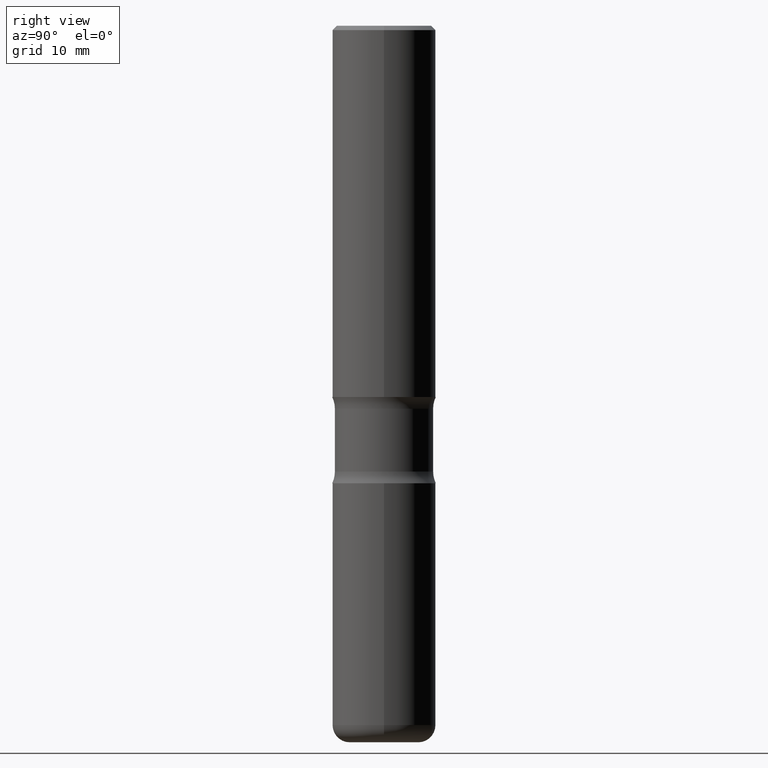
[diagram: clean part render]
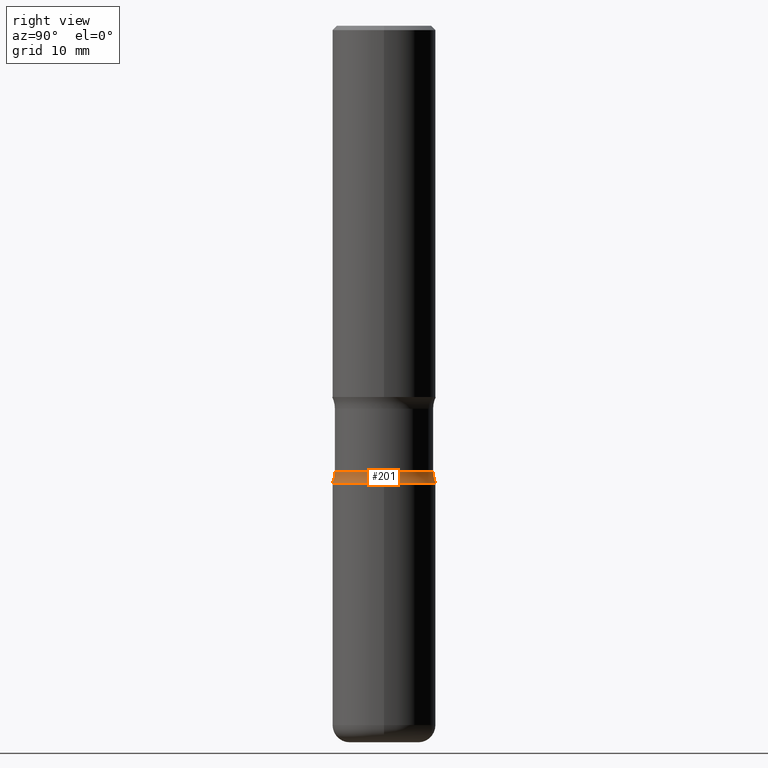
[diagram: same view with one face highlighted and labeled with its STEP entity id]
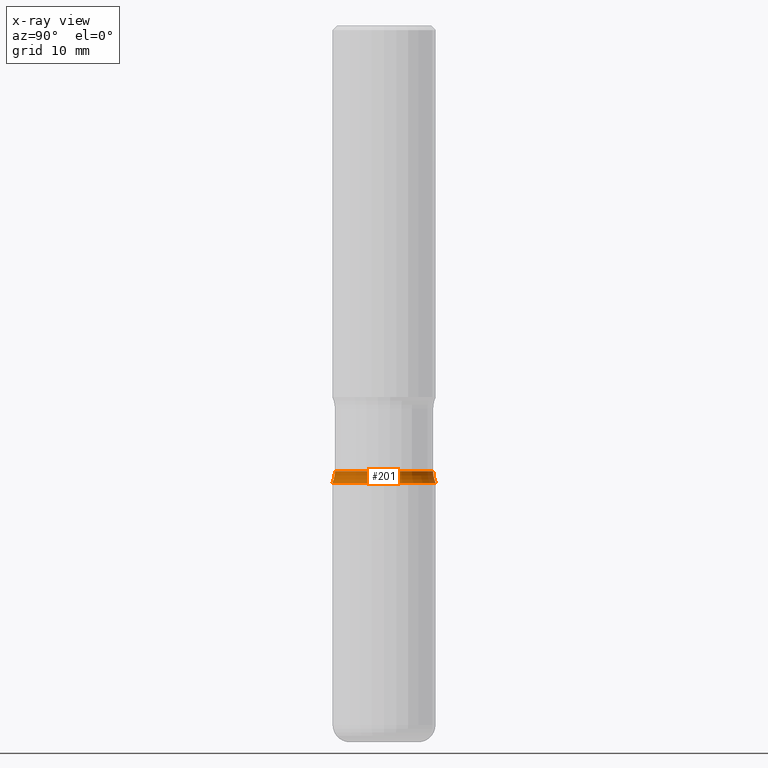
[diagram: x-ray of the same camera — body ghosted, the highlighted face saturated]
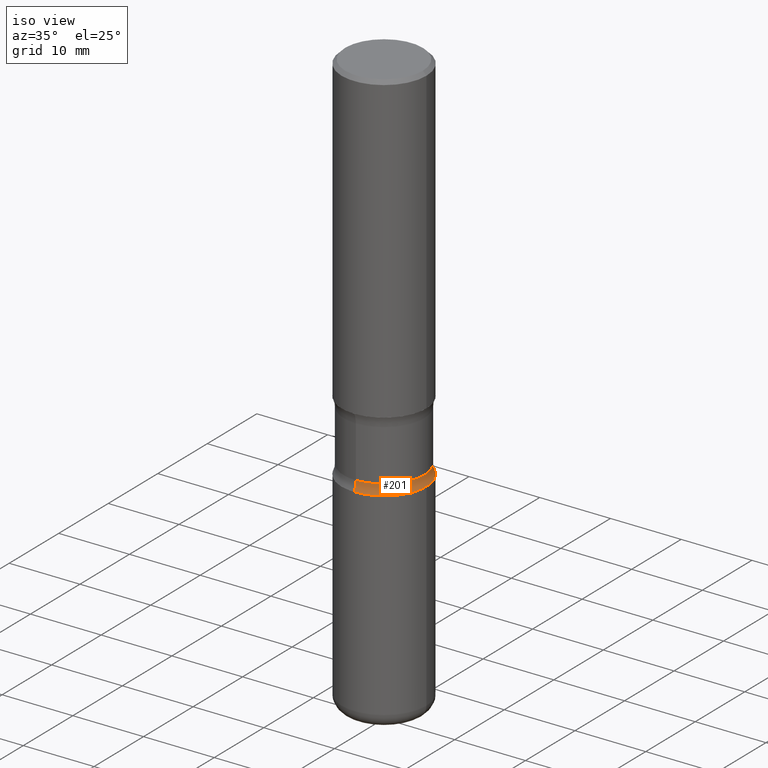
[diagram: same view with one face highlighted and labeled with its STEP entity id]
A machine part, right view. The second image highlights one B-rep face of the part: STEP entity #201.
The next image is the same camera in x-ray: the body ghosted, the highlighted face saturated — about 0% of this face is hidden behind the body in this view.
A second angle (iso view) of the same face is appended — the face is thin or edge-on in the first view.
In plain terms, the highlighted toroidal blend (fillet) surface has major radius 8.8646 mm and minor (blend) radius 3.175 mm.
Its self-contained STEP definition (entity closure, byte-faithful):
#8 = CARTESIAN_POINT ( 'NONE',  ( 4.973714950416923137E-29, -7.093372145566288471E-15, -2.032737582675856913 ) ) ;
#9 = EDGE_CURVE ( 'NONE', #544, #502, #110, .T. ) ;
#24 = CIRCLE ( 'NONE', #196, 0.2362000000000002153 ) ;
#34 = AXIS2_PLACEMENT_3D ( 'NONE', #136, #97, #341 ) ;
#39 = CARTESIAN_POINT ( 'NONE',  ( 5.102715210985905155E-29, -7.285324961630105839E-15, -2.086599999999999344 ) ) ;
#53 = EDGE_CURVE ( 'NONE', #211, #487, #302, .T. ) ;
#97 = DIRECTION ( 'NONE',  ( 2.394995749868806294E-29, -3.563761628236091094E-15, -1.000000000000000000 ) ) ;
#102 = ORIENTED_EDGE ( 'NONE', *, *, #259, .F. ) ;
#110 = CIRCLE ( 'NONE', #395, 0.1250000000000000278 ) ;
#121 = TOROIDAL_SURFACE ( 'NONE', #34, 0.3490000000000000324, 0.1250000000000000555 ) ;
#136 = CARTESIAN_POINT ( 'NONE',  ( 4.970996349593988769E-29, -7.097265336677881413E-15, -2.032737582675857357 ) ) ;
#146 = DIRECTION ( 'NONE',  ( 2.394995749868806294E-29, -3.563761628236091094E-15, -1.000000000000000000 ) ) ;
#178 = CARTESIAN_POINT ( 'NONE',  ( 1.564183639801773497E-15, 0.2239999999999929270, -2.032737582675857801 ) ) ;
#196 = AXIS2_PLACEMENT_3D ( 'NONE', #39, #350, #525 ) ;
#201 = ADVANCED_FACE ( 'NONE', ( #221 ), #121, .F. ) ;
#211 = VERTEX_POINT ( 'NONE', #475 ) ;
#215 = DIRECTION ( 'NONE',  ( -6.982962677686267499E-15, -1.000000000000000000, 0.000000000000000000 ) ) ;
#221 = FACE_OUTER_BOUND ( 'NONE', #483, .T. ) ;
#238 = AXIS2_PLACEMENT_3D ( 'NONE', #8, #146, #313 ) ;
#259 = EDGE_CURVE ( 'NONE', #544, #211, #24, .T. ) ;
#274 = ORIENTED_EDGE ( 'NONE', *, *, #53, .F. ) ;
#285 = EDGE_CURVE ( 'NONE', #502, #487, #343, .T. ) ;
#288 = DIRECTION ( 'NONE',  ( -1.000000000000000000, 6.982962677686265922E-15, -4.883557194083112340E-29 ) ) ;
#302 = CIRCLE ( 'NONE', #530, 0.1250000000000000278 ) ;
#313 = DIRECTION ( 'NONE',  ( 6.982962677686265922E-15, 1.000000000000000000, -3.658724991514637697E-15 ) ) ;
#314 = ORIENTED_EDGE ( 'NONE', *, *, #9, .T. ) ;
#341 = DIRECTION ( 'NONE',  ( 6.982962677686265133E-15, 1.000000000000000000, -3.563761628236091094E-15 ) ) ;
#343 = CIRCLE ( 'NONE', #238, 0.2240000000000000324 ) ;
#350 = DIRECTION ( 'NONE',  ( 2.394995749868806294E-29, -3.563761628236091094E-15, -1.000000000000000000 ) ) ;
#371 = CARTESIAN_POINT ( 'NONE',  ( -1.578600589287179908E-15, -0.2240000000000071378, -2.032737582675856025 ) ) ;
#395 = AXIS2_PLACEMENT_3D ( 'NONE', #406, #288, #215 ) ;
#397 = CARTESIAN_POINT ( 'NONE',  ( -2.394313801222215092E-15, -0.3490000000000071378, -2.032737582675855581 ) ) ;
#406 = CARTESIAN_POINT ( 'NONE',  ( 2.437053974512556244E-15, 0.3489999999999929270, -2.032737582675858690 ) ) ;
#428 = DIRECTION ( 'NONE',  ( 6.860497997771532351E-15, 1.000000000000000000, 0.000000000000000000 ) ) ;
#450 = CARTESIAN_POINT ( 'NONE',  ( 1.649375784469548590E-15, 0.2361999999999929711, -2.086600000000000676 ) ) ;
#475 = CARTESIAN_POINT ( 'NONE',  ( -1.620449627073586564E-15, -0.2362000000000075151, -2.086599999999998456 ) ) ;
#483 = EDGE_LOOP ( 'NONE', ( #274, #102, #314, #549 ) ) ;
#487 = VERTEX_POINT ( 'NONE', #371 ) ;
#502 = VERTEX_POINT ( 'NONE', #178 ) ;
#525 = DIRECTION ( 'NONE',  ( 6.982962677686265133E-15, 1.000000000000000000, -3.469747663417773847E-15 ) ) ;
#526 = DIRECTION ( 'NONE',  ( 1.000000000000000000, -6.860497997771530774E-15, 4.839913701373677961E-29 ) ) ;
#530 = AXIS2_PLACEMENT_3D ( 'NONE', #397, #526, #428 ) ;
#544 = VERTEX_POINT ( 'NONE', #450 ) ;
#549 = ORIENTED_EDGE ( 'NONE', *, *, #285, .T. ) ;